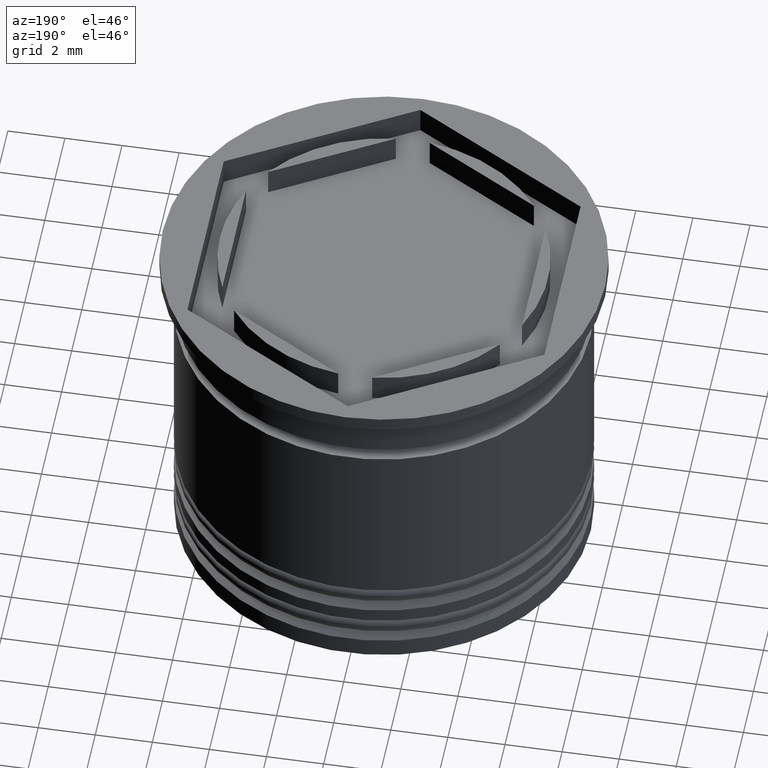
[diagram: clean part render]
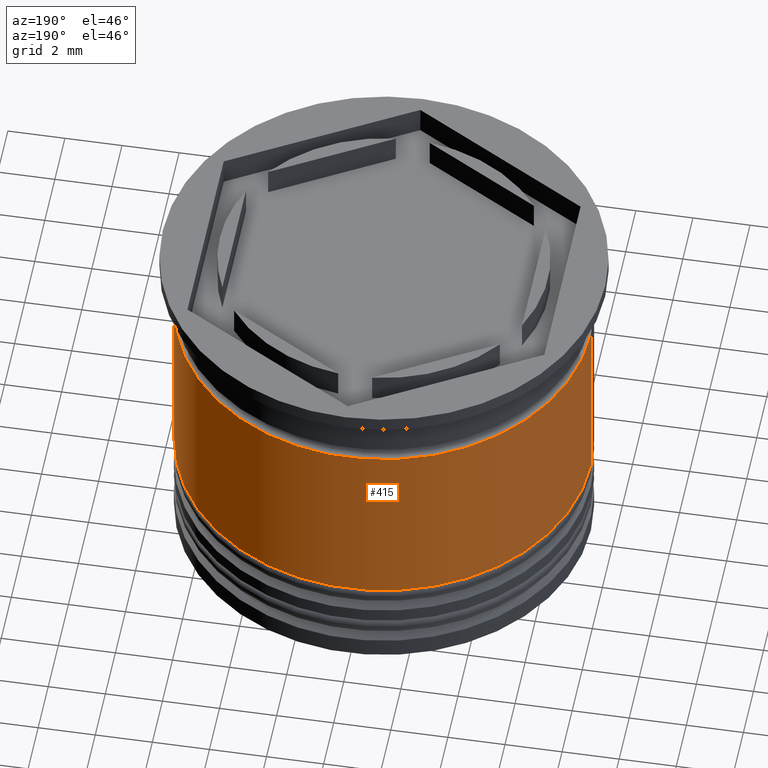
[diagram: same view with one face highlighted and labeled with its STEP entity id]
A machine part, auxiliary view. The second image highlights one B-rep face of the part: STEP entity #415.
In plain terms, the highlighted cylindrical surface (partial cylindrical patch) has radius 7.25 mm, axis along (-0, -0, 1).
Its self-contained STEP definition (entity closure, byte-faithful):
#47 = VERTEX_POINT ( 'NONE', #1003 ) ;
#48 = VERTEX_POINT ( 'NONE', #399 ) ;
#114 = ORIENTED_EDGE ( 'NONE', *, *, #1187, .T. ) ;
#189 = ORIENTED_EDGE ( 'NONE', *, *, #1082, .F. ) ;
#206 = CARTESIAN_POINT ( 'NONE',  ( -7.249999999999999112, 8.878689293818310074E-16, -2.499999999999999556 ) ) ;
#254 = DIRECTION ( 'NONE',  ( 1.000000000000000000, 0.000000000000000000, 0.000000000000000000 ) ) ;
#330 = DIRECTION ( 'NONE',  ( 1.000000000000000000, 0.000000000000000000, 0.000000000000000000 ) ) ;
#379 = EDGE_CURVE ( 'NONE', #47, #1562, #631, .T. ) ;
#399 = CARTESIAN_POINT ( 'NONE',  ( 7.249999999999999112, 0.000000000000000000, -9.000000000000001776 ) ) ;
#415 = ADVANCED_FACE ( 'NONE', ( #1236 ), #811, .T. ) ;
#449 = DIRECTION ( 'NONE',  ( 1.000000000000000000, 0.000000000000000000, 0.000000000000000000 ) ) ;
#456 = EDGE_LOOP ( 'NONE', ( #114, #1270, #189, #1569 ) ) ;
#507 = DIRECTION ( 'NONE',  ( -0.000000000000000000, -0.000000000000000000, 1.000000000000000000 ) ) ;
#512 = CARTESIAN_POINT ( 'NONE',  ( -7.249999999999999112, 8.878689293818310074E-16, 0.000000000000000000 ) ) ;
#514 = VERTEX_POINT ( 'NONE', #807 ) ;
#529 = EDGE_CURVE ( 'NONE', #48, #514, #616, .T. ) ;
#540 = CARTESIAN_POINT ( 'NONE',  ( 0.000000000000000000, 0.000000000000000000, -2.499999999999999556 ) ) ;
#569 = VECTOR ( 'NONE', #1893, 1000.000000000000000 ) ;
#616 = LINE ( 'NONE', #1384, #569 ) ;
#631 = LINE ( 'NONE', #512, #1048 ) ;
#807 = CARTESIAN_POINT ( 'NONE',  ( 7.249999999999999112, 0.000000000000000000, -2.499999999999999556 ) ) ;
#811 = CYLINDRICAL_SURFACE ( 'NONE', #1480, 7.249999999999999112 ) ;
#850 = AXIS2_PLACEMENT_3D ( 'NONE', #540, #507, #254 ) ;
#907 = CARTESIAN_POINT ( 'NONE',  ( 0.000000000000000000, 0.000000000000000000, -9.000000000000001776 ) ) ;
#926 = CARTESIAN_POINT ( 'NONE',  ( 0.000000000000000000, 0.000000000000000000, 0.000000000000000000 ) ) ;
#982 = AXIS2_PLACEMENT_3D ( 'NONE', #907, #1327, #449 ) ;
#1003 = CARTESIAN_POINT ( 'NONE',  ( -7.249999999999999112, 8.878689293818310074E-16, -9.000000000000001776 ) ) ;
#1048 = VECTOR ( 'NONE', #1247, 1000.000000000000000 ) ;
#1082 = EDGE_CURVE ( 'NONE', #514, #1562, #1724, .T. ) ;
#1187 = EDGE_CURVE ( 'NONE', #48, #47, #1335, .T. ) ;
#1236 = FACE_OUTER_BOUND ( 'NONE', #456, .T. ) ;
#1247 = DIRECTION ( 'NONE',  ( -0.000000000000000000, -0.000000000000000000, 1.000000000000000000 ) ) ;
#1270 = ORIENTED_EDGE ( 'NONE', *, *, #379, .T. ) ;
#1327 = DIRECTION ( 'NONE',  ( -0.000000000000000000, -0.000000000000000000, 1.000000000000000000 ) ) ;
#1335 = CIRCLE ( 'NONE', #982, 7.249999999999999112 ) ;
#1384 = CARTESIAN_POINT ( 'NONE',  ( 7.249999999999999112, 0.000000000000000000, 0.000000000000000000 ) ) ;
#1480 = AXIS2_PLACEMENT_3D ( 'NONE', #926, #1589, #330 ) ;
#1562 = VERTEX_POINT ( 'NONE', #206 ) ;
#1569 = ORIENTED_EDGE ( 'NONE', *, *, #529, .F. ) ;
#1589 = DIRECTION ( 'NONE',  ( -0.000000000000000000, -0.000000000000000000, 1.000000000000000000 ) ) ;
#1724 = CIRCLE ( 'NONE', #850, 7.249999999999999112 ) ;
#1893 = DIRECTION ( 'NONE',  ( -0.000000000000000000, -0.000000000000000000, 1.000000000000000000 ) ) ;